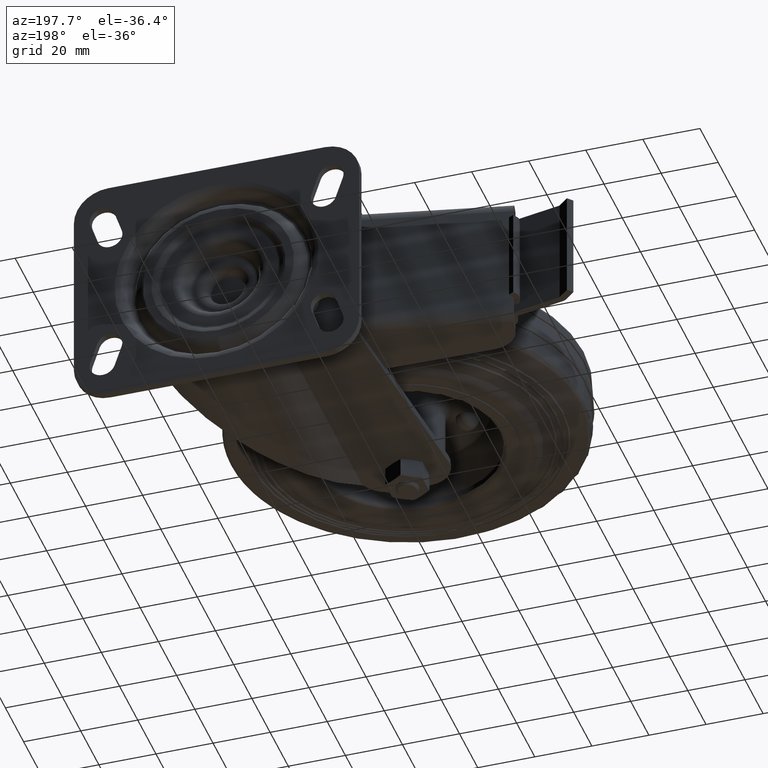
[diagram: clean part render]
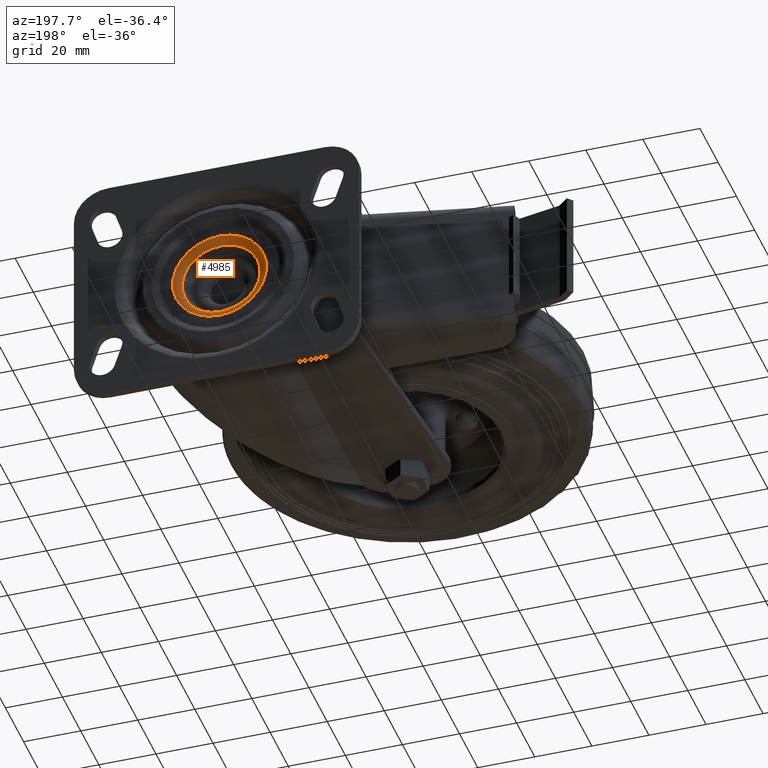
[diagram: same view with one face highlighted and labeled with its STEP entity id]
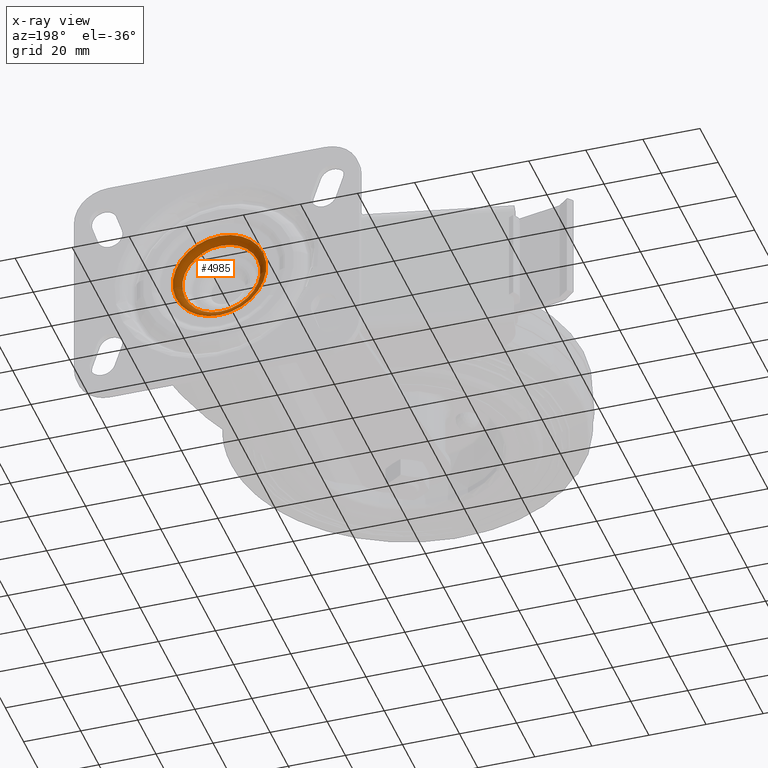
[diagram: x-ray of the same camera — body ghosted, the highlighted face saturated]
A machine part, auxiliary view. The second image highlights one B-rep face of the part: STEP entity #4985.
The next image is the same camera in x-ray: the body ghosted, the highlighted face saturated — about 0% of this face is hidden behind the body in this view.
In plain terms, the highlighted toroidal blend (fillet) surface has major radius 16.4253 mm and minor (blend) radius 3 mm.
Its self-contained STEP definition (entity closure, byte-faithful):
#202=TOROIDAL_SURFACE('',#5458,16.4252574397,3.);
#403=CIRCLE('',#5457,16.4252574397);
#404=CIRCLE('',#5459,13.6553859718);
#405=CIRCLE('',#5460,3.);
#620=FACE_OUTER_BOUND('',#939,.T.);
#939=EDGE_LOOP('',(#3611,#3612,#3613,#3614));
#2119=VERTEX_POINT('',#7869);
#2120=VERTEX_POINT('',#7872);
#2663=EDGE_CURVE('',#2119,#2119,#403,.T.);
#2664=EDGE_CURVE('',#2120,#2120,#404,.T.);
#2665=EDGE_CURVE('',#2120,#2119,#405,.T.);
#3611=ORIENTED_EDGE('',*,*,#2664,.F.);
#3612=ORIENTED_EDGE('',*,*,#2665,.T.);
#3613=ORIENTED_EDGE('',*,*,#2663,.T.);
#3614=ORIENTED_EDGE('',*,*,#2665,.F.);
#4985=ADVANCED_FACE('',(#620),#202,.T.);
#5457=AXIS2_PLACEMENT_3D('',#7870,#6409,#6410);
#5458=AXIS2_PLACEMENT_3D('',#7871,#6411,#6412);
#5459=AXIS2_PLACEMENT_3D('',#7873,#6413,#6414);
#5460=AXIS2_PLACEMENT_3D('',#7874,#6415,#6416);
#6409=DIRECTION('center_axis',(0.,1.,0.));
#6410=DIRECTION('ref_axis',(0.,0.,1.));
#6411=DIRECTION('center_axis',(0.,1.,0.));
#6412=DIRECTION('ref_axis',(0.,0.,1.));
#6413=DIRECTION('center_axis',(0.,1.,0.));
#6414=DIRECTION('ref_axis',(0.,0.,1.));
#6415=DIRECTION('center_axis',(-1.,0.,2.2861432402047E-16));
#6416=DIRECTION('ref_axis',(-2.2861432402047E-16,0.,-1.));
#7869=CARTESIAN_POINT('',(37.,90.3000000000307,-16.4252574397));
#7870=CARTESIAN_POINT('Origin',(37.,90.3000000000307,0.));
#7871=CARTESIAN_POINT('Origin',(37.,87.3,0.));
#7872=CARTESIAN_POINT('',(37.,88.4523072731434,-13.6553859718));
#7873=CARTESIAN_POINT('Origin',(37.,88.4523072731434,0.));
#7874=CARTESIAN_POINT('Origin',(37.,87.3,-16.4252574397));